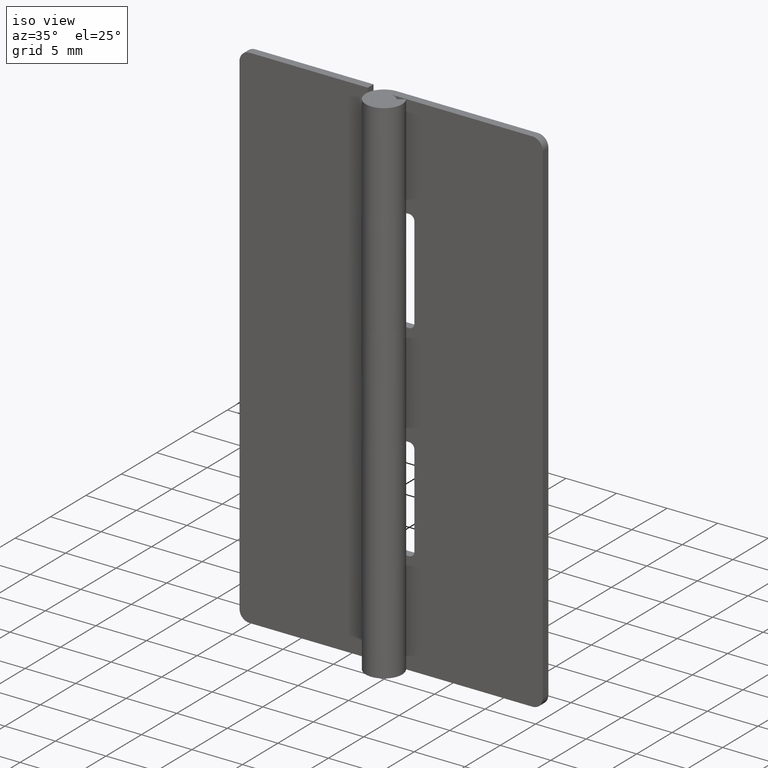
[diagram: clean part render]
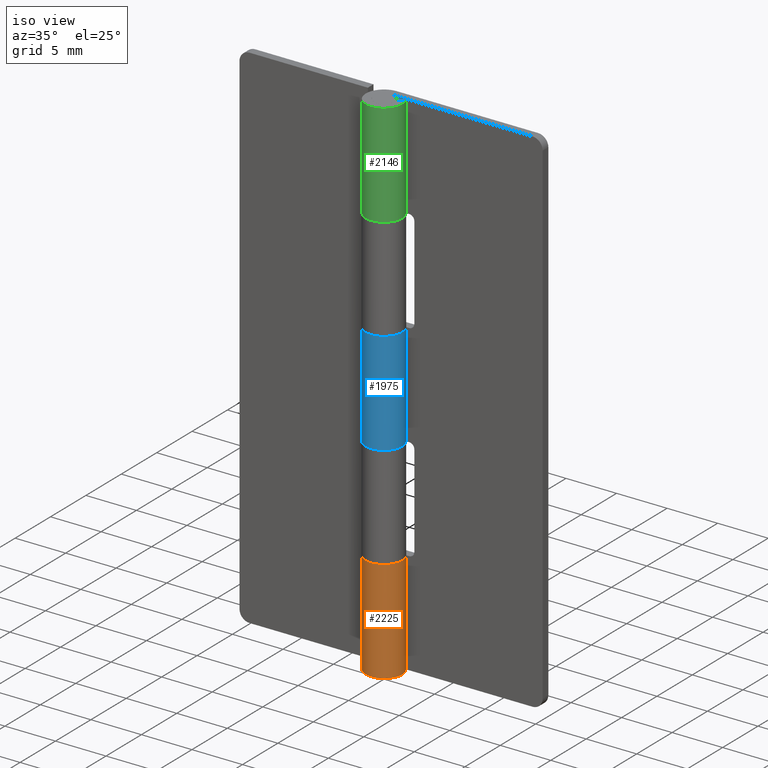
[diagram: same view with three faces highlighted in distinct colors, each labeled with its STEP entity id]
A machine part, iso view with three faces highlighted in distinct colors.
Their STEP definitions:

[orange] entity #2225 — the highlighted face is a freeform B-spline surface patch.
#1478=CARTESIAN_POINT('',(0.001897366339661,1.799999000000000,10.199997000000000));
#1479=VERTEX_POINT('',#1478);
#1485=CARTESIAN_POINT('',(0.0,1.799999499999995,10.199996999999961));
#1486=VERTEX_POINT('',#1485);
#1487=CARTESIAN_POINT('',(0.0,1.799999499999995,10.199996999999961));
#1488=CARTESIAN_POINT('',(0.001897366339661,1.799999000000000,10.199997000000000));
#1489=QUASI_UNIFORM_CURVE('',1,(#1487,#1488),.UNSPECIFIED.,.F.,.U.);
#1490=EDGE_CURVE('',#1486,#1479,#1489,.T.);
#1492=CARTESIAN_POINT('',(1.528888485142070,0.950000000000000,10.199996999999961));
#1493=VERTEX_POINT('',#1492);
#1494=CARTESIAN_POINT('',(0.0,1.799999499999995,10.199996999999961));
#1495=CARTESIAN_POINT('',(-1.392801052929097,1.800000000000001,10.199996999999961));
#1496=CARTESIAN_POINT('',(-1.742381113599922,0.451783194652365,10.199996999999961));
#1497=CARTESIAN_POINT('',(-2.091961174270747,-0.896433610695271,10.199996999999961));
#1498=CARTESIAN_POINT('',(-0.874642784226797,-1.573213272255226,10.199996999999961));
#1499=CARTESIAN_POINT('',(0.342675605817153,-2.249992933815181,10.199996999999961));
#1500=CARTESIAN_POINT('',(1.303326767780343,-1.241506881328994,10.199996999999961));
#1501=CARTESIAN_POINT('',(2.263977929743533,-0.233020828842806,10.199996999999961));
#1502=CARTESIAN_POINT('',(1.528888485142067,0.949999999999997,10.199996999999961));
#1510=(BOUNDED_CURVE()B_SPLINE_CURVE(2,(#1494,#1495,#1496,#1497,#1498,#1499,#1500,#1501,#1502),.UNSPECIFIED.,.F.,.U.)B_SPLINE_CURVE_WITH_KNOTS((3,2,2,2,3),(0.0,0.250000000000000,0.500000000000000,0.750000000000000,1.0),.UNSPECIFIED.)CURVE()GEOMETRIC_REPRESENTATION_ITEM()RATIONAL_B_SPLINE_CURVE((1.0,0.790882628363956,1.0,0.790882628363956,1.0,0.790882628363956,1.0,0.790882628363956,1.0))REPRESENTATION_ITEM(''));
#1511=EDGE_CURVE('',#1486,#1493,#1510,.T.);
#1804=CARTESIAN_POINT('',(0.001897366339661,1.799999000000000,0.0));
#1805=VERTEX_POINT('',#1804);
#1840=CARTESIAN_POINT('',(1.528888485142070,0.950000000000000,0.0));
#1841=VERTEX_POINT('',#1840);
#1847=CARTESIAN_POINT('',(1.528888485142070,0.950000000000000,0.0));
#1848=CARTESIAN_POINT('',(2.264178069144421,-0.233342924448529,0.0));
#1849=CARTESIAN_POINT('',(1.302999556723710,-1.241850294994455,0.0));
#1850=CARTESIAN_POINT('',(0.341821044302998,-2.250357665540383,0.0));
#1851=CARTESIAN_POINT('',(-0.875471818949307,-1.572752076528781,0.0));
#1852=CARTESIAN_POINT('',(-2.092764682201610,-0.895146487517180,0.0));
#1853=CARTESIAN_POINT('',(-1.742023403149212,0.453160526613295,0.0));
#1854=CARTESIAN_POINT('',(-1.391282124096815,1.801467540743771,0.0));
#1855=CARTESIAN_POINT('',(0.001897366339661,1.799999000000000,0.0));
#1863=(BOUNDED_CURVE()B_SPLINE_CURVE(2,(#1847,#1848,#1849,#1850,#1851,#1852,#1853,#1854,#1855),.UNSPECIFIED.,.F.,.U.)B_SPLINE_CURVE_WITH_KNOTS((3,2,2,2,3),(0.0,0.250000000000000,0.500000000000000,0.750000000000000,1.0),.UNSPECIFIED.)CURVE()GEOMETRIC_REPRESENTATION_ITEM()RATIONAL_B_SPLINE_CURVE((1.0,0.790801987648639,1.0,0.790801987648639,1.0,0.790801987648639,1.0,0.790801987648639,1.0))REPRESENTATION_ITEM(''));
#1864=EDGE_CURVE('',#1841,#1805,#1863,.T.);
#2091=CARTESIAN_POINT('',(0.001897366339661,1.799999000000000,10.199997000000000));
#2092=CARTESIAN_POINT('',(0.001897366339661,1.799999000000000,0.0));
#2093=QUASI_UNIFORM_CURVE('',1,(#2091,#2092),.UNSPECIFIED.,.F.,.U.);
#2094=EDGE_CURVE('',#1479,#1805,#2093,.T.);
#2153=CARTESIAN_POINT('',(1.528888485142070,0.950000000000000,10.199996999999961));
#2154=CARTESIAN_POINT('',(1.528888485142070,0.950000000000000,0.0));
#2155=QUASI_UNIFORM_CURVE('',1,(#2153,#2154),.UNSPECIFIED.,.F.,.U.);
#2156=EDGE_CURVE('',#1493,#1841,#2155,.T.);
#2196=CARTESIAN_POINT('',(0.078514897257602,1.798286798847343,10.454996925000000));
#2197=CARTESIAN_POINT('',(0.078514897257602,1.798286798847343,-0.261374923125000));
#2198=CARTESIAN_POINT('',(-2.155440145690264,1.895823382437670,10.454996925000000));
#2199=CARTESIAN_POINT('',(-2.155440145690264,1.895823382437670,-0.261374923125000));
#2200=CARTESIAN_POINT('',(-1.773555674137216,-0.307408963330094,10.454996925000000));
#2201=CARTESIAN_POINT('',(-1.773555674137216,-0.307408963330094,-0.261374923125000));
#2202=CARTESIAN_POINT('',(-1.391671202584169,-2.510641309097856,10.454996925000000));
#2203=CARTESIAN_POINT('',(-1.391671202584169,-2.510641309097856,-0.261374923125000));
#2204=CARTESIAN_POINT('',(0.679143731821915,-1.666962444546067,10.454996925000000));
#2205=CARTESIAN_POINT('',(0.679143731821915,-1.666962444546067,-0.261374923125000));
#2206=CARTESIAN_POINT('',(2.749958666227998,-0.823283579994278,10.454996925000000));
#2207=CARTESIAN_POINT('',(2.749958666227998,-0.823283579994278,-0.261374923125000));
#2208=CARTESIAN_POINT('',(1.483427139519628,1.019531226464698,10.454996925000000));
#2209=CARTESIAN_POINT('',(1.483427139519628,1.019531226464698,-0.261374923125000));
#2217=(BOUNDED_SURFACE()B_SPLINE_SURFACE(1,2,((#2196,#2198,#2200,#2202,#2204,#2206,#2208),(#2197,#2199,#2201,#2203,#2205,#2207,#2209)),.UNSPECIFIED.,.F.,.F.,.U.)B_SPLINE_SURFACE_WITH_KNOTS((2,2),(3,2,2,3),(0.0,10.716371848125000),(0.0,3.447087177418942,6.894174354837885,10.341261532256830),.UNSPECIFIED.)GEOMETRIC_REPRESENTATION_ITEM()RATIONAL_B_SPLINE_SURFACE(((1.0,0.627057105746662,1.0,0.627057105746662,1.0,0.627057105746662,1.0),(1.0,0.627057105746662,1.0,0.627057105746662,1.0,0.627057105746662,1.0)))REPRESENTATION_ITEM('')SURFACE());
#2218=ORIENTED_EDGE('',*,*,#1490,.T.);
#2219=ORIENTED_EDGE('',*,*,#2094,.T.);
#2220=ORIENTED_EDGE('',*,*,#1864,.F.);
#2221=ORIENTED_EDGE('',*,*,#2156,.F.);
#2222=ORIENTED_EDGE('',*,*,#1511,.F.);
#2223=EDGE_LOOP('',(#2218,#2219,#2220,#2221,#2222));
#2224=FACE_OUTER_BOUND('',#2223,.T.);
#2225=ADVANCED_FACE('',(#2224),#2217,.T.);

[blue] entity #1975 — the highlighted face is a freeform B-spline surface patch.
#1547=CARTESIAN_POINT('',(0.001897366339661,1.799999000000000,20.400001999999901));
#1548=VERTEX_POINT('',#1547);
#1583=CARTESIAN_POINT('',(1.528888485142070,0.950000000000000,20.400001999999901));
#1584=VERTEX_POINT('',#1583);
#1590=CARTESIAN_POINT('',(1.528888485142066,0.949999999999999,20.400001999999901));
#1591=CARTESIAN_POINT('',(2.264178069144421,-0.233342924448529,20.400001999999908));
#1592=CARTESIAN_POINT('',(1.302999556723710,-1.241850294994455,20.400001999999901));
#1593=CARTESIAN_POINT('',(0.341821044302998,-2.250357665540383,20.400001999999908));
#1594=CARTESIAN_POINT('',(-0.875471818949307,-1.572752076528781,20.400001999999901));
#1595=CARTESIAN_POINT('',(-2.092764682201610,-0.895146487517180,20.400001999999908));
#1596=CARTESIAN_POINT('',(-1.742023403149212,0.453160526613295,20.400001999999901));
#1597=CARTESIAN_POINT('',(-1.391282124096815,1.801467540743771,20.400001999999908));
#1598=CARTESIAN_POINT('',(0.001897366339661,1.799998999999992,20.400001999999901));
#1606=(BOUNDED_CURVE()B_SPLINE_CURVE(2,(#1590,#1591,#1592,#1593,#1594,#1595,#1596,#1597,#1598),.UNSPECIFIED.,.F.,.U.)B_SPLINE_CURVE_WITH_KNOTS((3,2,2,2,3),(0.0,0.250000000000000,0.500000000000000,0.750000000000000,1.0),.UNSPECIFIED.)CURVE()GEOMETRIC_REPRESENTATION_ITEM()RATIONAL_B_SPLINE_CURVE((1.0,0.790801987648639,1.0,0.790801987648639,1.0,0.790801987648639,1.0,0.790801987648639,1.0))REPRESENTATION_ITEM(''));
#1607=EDGE_CURVE('',#1584,#1548,#1606,.T.);
#1722=CARTESIAN_POINT('',(0.001897366339661,1.799999000000000,30.599990999999999));
#1723=VERTEX_POINT('',#1722);
#1729=CARTESIAN_POINT('',(1.528888485142070,0.950000000000000,30.599990999999999));
#1730=VERTEX_POINT('',#1729);
#1731=CARTESIAN_POINT('',(0.001897366339662,1.799998999999992,30.599990999999999));
#1732=CARTESIAN_POINT('',(-1.391282124096812,1.801467540743771,30.599991000000003));
#1733=CARTESIAN_POINT('',(-1.742023403149211,0.453160526613296,30.599990999999999));
#1734=CARTESIAN_POINT('',(-2.092764682201610,-0.895146487517178,30.599991000000003));
#1735=CARTESIAN_POINT('',(-0.875471818949307,-1.572752076528780,30.599990999999999));
#1736=CARTESIAN_POINT('',(0.341821044302995,-2.250357665540383,30.599991000000003));
#1737=CARTESIAN_POINT('',(1.302999556723708,-1.241850294994457,30.599990999999999));
#1738=CARTESIAN_POINT('',(2.264178069144421,-0.233342924448532,30.599991000000003));
#1739=CARTESIAN_POINT('',(1.528888485142067,0.949999999999997,30.599990999999999));
#1747=(BOUNDED_CURVE()B_SPLINE_CURVE(2,(#1731,#1732,#1733,#1734,#1735,#1736,#1737,#1738,#1739),.UNSPECIFIED.,.F.,.U.)B_SPLINE_CURVE_WITH_KNOTS((3,2,2,2,3),(0.0,0.250000000000000,0.500000000000000,0.750000000000000,1.0),.UNSPECIFIED.)CURVE()GEOMETRIC_REPRESENTATION_ITEM()RATIONAL_B_SPLINE_CURVE((1.0,0.790801987648639,1.0,0.790801987648639,1.0,0.790801987648639,1.0,0.790801987648639,1.0))REPRESENTATION_ITEM(''));
#1748=EDGE_CURVE('',#1723,#1730,#1747,.T.);
#1939=CARTESIAN_POINT('',(0.051658570403824,1.799258567328173,30.854990725000011));
#1940=CARTESIAN_POINT('',(0.051658570403824,1.799258567328173,20.138627281874900));
#1941=CARTESIAN_POINT('',(-2.196862823818758,1.863815937156590,30.854990725000015));
#1942=CARTESIAN_POINT('',(-2.196862823818758,1.863815937156590,20.138627281874900));
#1943=CARTESIAN_POINT('',(-1.766796336686053,-0.344137624610768,30.854990725000011));
#1944=CARTESIAN_POINT('',(-1.766796336686053,-0.344137624610768,20.138627281874900));
#1945=CARTESIAN_POINT('',(-1.336729849553347,-2.552091186378127,30.854990725000015));
#1946=CARTESIAN_POINT('',(-1.336729849553347,-2.552091186378127,20.138627281874900));
#1947=CARTESIAN_POINT('',(0.723182769453666,-1.648334517616289,30.854990725000011));
#1948=CARTESIAN_POINT('',(0.723182769453666,-1.648334517616289,20.138627281874900));
#1949=CARTESIAN_POINT('',(2.783095388460680,-0.744577848854451,30.854990725000015));
#1950=CARTESIAN_POINT('',(2.783095388460680,-0.744577848854451,20.138627281874900));
#1951=CARTESIAN_POINT('',(1.449639291241658,1.067026675059430,30.854990725000011));
#1952=CARTESIAN_POINT('',(1.449639291241658,1.067026675059430,20.138627281874900));
#1960=(BOUNDED_SURFACE()B_SPLINE_SURFACE(1,2,((#1939,#1941,#1943,#1945,#1947,#1949,#1951),(#1940,#1942,#1944,#1946,#1948,#1950,#1952)),.UNSPECIFIED.,.F.,.F.,.U.)B_SPLINE_SURFACE_WITH_KNOTS((2,2),(3,2,2,3),(0.0,10.716363443125109),(0.0,3.459968446201030,6.919936892402060,10.379905338603090),.UNSPECIFIED.)GEOMETRIC_REPRESENTATION_ITEM()RATIONAL_B_SPLINE_SURFACE(((1.0,0.624788514543960,1.0,0.624788514543960,1.0,0.624788514543960,1.0),(1.0,0.624788514543960,1.0,0.624788514543960,1.0,0.624788514543960,1.0)))REPRESENTATION_ITEM('')SURFACE());
#1961=ORIENTED_EDGE('',*,*,#1607,.F.);
#1962=CARTESIAN_POINT('',(1.528888485142070,0.950000000000000,30.599990999999999));
#1963=CARTESIAN_POINT('',(1.528888485142070,0.950000000000000,20.400001999999901));
#1964=QUASI_UNIFORM_CURVE('',1,(#1962,#1963),.UNSPECIFIED.,.F.,.U.);
#1965=EDGE_CURVE('',#1730,#1584,#1964,.T.);
#1966=ORIENTED_EDGE('',*,*,#1965,.F.);
#1967=ORIENTED_EDGE('',*,*,#1748,.F.);
#1968=CARTESIAN_POINT('',(0.001897366339661,1.799999000000000,30.599990999999999));
#1969=CARTESIAN_POINT('',(0.001897366339661,1.799999000000000,20.400001999999901));
#1970=QUASI_UNIFORM_CURVE('',1,(#1968,#1969),.UNSPECIFIED.,.F.,.U.);
#1971=EDGE_CURVE('',#1723,#1548,#1970,.T.);
#1972=ORIENTED_EDGE('',*,*,#1971,.T.);
#1973=EDGE_LOOP('',(#1961,#1966,#1967,#1972));
#1974=FACE_OUTER_BOUND('',#1973,.T.);
#1975=ADVANCED_FACE('',(#1974),#1960,.T.);

[green] entity #2146 — the highlighted face is a freeform B-spline surface patch.
#1637=CARTESIAN_POINT('',(0.001897366339661,1.799999000000000,40.799995999999886));
#1638=VERTEX_POINT('',#1637);
#1673=CARTESIAN_POINT('',(1.528888485142070,0.950000000000000,40.799995999999950));
#1674=VERTEX_POINT('',#1673);
#1680=CARTESIAN_POINT('',(0.0,1.799999000000000,40.799995999999886));
#1681=VERTEX_POINT('',#1680);
#1682=CARTESIAN_POINT('',(1.528888485142070,0.950000000000000,40.799995999999950));
#1683=CARTESIAN_POINT('',(2.263977929743539,-0.233020132948195,40.799995999999993));
#1684=CARTESIAN_POINT('',(1.303326767780350,-1.241506385276004,40.799995999999979));
#1685=CARTESIAN_POINT('',(0.342675605817160,-2.249992637603814,40.799995999999972));
#1686=CARTESIAN_POINT('',(-0.874642784226794,-1.573213772255226,40.799995999999922));
#1687=CARTESIAN_POINT('',(-2.091961174270748,-0.896434906906639,40.799995999999894));
#1688=CARTESIAN_POINT('',(-1.742381113599924,0.451781698599378,40.799995999999872));
#1689=CARTESIAN_POINT('',(-1.392801052929100,1.799998304105394,40.799995999999865));
#1690=CARTESIAN_POINT('',(0.0,1.799999000000000,40.799995999999886));
#1698=(BOUNDED_CURVE()B_SPLINE_CURVE(2,(#1682,#1683,#1684,#1685,#1686,#1687,#1688,#1689,#1690),.UNSPECIFIED.,.F.,.U.)B_SPLINE_CURVE_WITH_KNOTS((3,2,2,2,3),(0.0,0.250000000000000,0.500000000000000,0.750000000000000,1.0),.UNSPECIFIED.)CURVE()GEOMETRIC_REPRESENTATION_ITEM()RATIONAL_B_SPLINE_CURVE((1.0,0.790882628363956,1.0,0.790882628363956,1.0,0.790882628363956,1.0,0.790882628363956,1.0))REPRESENTATION_ITEM(''));
#1699=EDGE_CURVE('',#1674,#1681,#1698,.T.);
#1701=CARTESIAN_POINT('',(0.0,1.799999000000000,40.799995999999886));
#1702=CARTESIAN_POINT('',(0.001897366339661,1.799999000000000,40.799995999999886));
#1703=QUASI_UNIFORM_CURVE('',1,(#1701,#1702),.UNSPECIFIED.,.F.,.U.);
#1704=EDGE_CURVE('',#1681,#1638,#1703,.T.);
#1882=CARTESIAN_POINT('',(0.001897366339661,1.799999000000000,50.999992999999897));
#1883=VERTEX_POINT('',#1882);
#1889=CARTESIAN_POINT('',(1.528888485142070,0.950000000000000,50.999992999999897));
#1890=VERTEX_POINT('',#1889);
#1891=CARTESIAN_POINT('',(1.528888485142066,0.949999999999999,50.999992999999897));
#1892=CARTESIAN_POINT('',(2.264178069144421,-0.233342924448529,50.999992999999897));
#1893=CARTESIAN_POINT('',(1.302999556723710,-1.241850294994455,50.999992999999897));
#1894=CARTESIAN_POINT('',(0.341821044302998,-2.250357665540383,50.999992999999897));
#1895=CARTESIAN_POINT('',(-0.875471818949307,-1.572752076528781,50.999992999999897));
#1896=CARTESIAN_POINT('',(-2.092764682201610,-0.895146487517180,50.999992999999897));
#1897=CARTESIAN_POINT('',(-1.742023403149212,0.453160526613295,50.999992999999897));
#1898=CARTESIAN_POINT('',(-1.391282124096815,1.801467540743771,50.999992999999897));
#1899=CARTESIAN_POINT('',(0.001897366339661,1.799998999999992,50.999992999999897));
#1907=(BOUNDED_CURVE()B_SPLINE_CURVE(2,(#1891,#1892,#1893,#1894,#1895,#1896,#1897,#1898,#1899),.UNSPECIFIED.,.F.,.U.)B_SPLINE_CURVE_WITH_KNOTS((3,2,2,2,3),(0.0,0.250000000000000,0.500000000000000,0.750000000000000,1.0),.UNSPECIFIED.)CURVE()GEOMETRIC_REPRESENTATION_ITEM()RATIONAL_B_SPLINE_CURVE((1.0,0.790801987648639,1.0,0.790801987648639,1.0,0.790801987648639,1.0,0.790801987648639,1.0))REPRESENTATION_ITEM(''));
#1908=EDGE_CURVE('',#1890,#1883,#1907,.T.);
#1988=CARTESIAN_POINT('',(1.528888485142070,0.950000000000000,50.999992999999897));
#1989=CARTESIAN_POINT('',(1.528888485142070,0.950000000000000,40.799995999999950));
#1990=QUASI_UNIFORM_CURVE('',1,(#1988,#1989),.UNSPECIFIED.,.F.,.U.);
#1991=EDGE_CURVE('',#1890,#1674,#1990,.T.);
#2107=CARTESIAN_POINT('',(0.001897366339661,1.799999000000000,50.999992999999897));
#2108=CARTESIAN_POINT('',(0.001897366339661,1.799999000000000,40.799995999999886));
#2109=QUASI_UNIFORM_CURVE('',1,(#2107,#2108),.UNSPECIFIED.,.F.,.U.);
#2110=EDGE_CURVE('',#1883,#1638,#2109,.T.);
#2117=CARTESIAN_POINT('',(0.078514897257602,1.798286798847343,51.254992924999897));
#2118=CARTESIAN_POINT('',(0.078514897257602,1.798286798847343,40.538621076874861));
#2119=CARTESIAN_POINT('',(-2.155440145690264,1.895823382437670,51.254992924999897));
#2120=CARTESIAN_POINT('',(-2.155440145690264,1.895823382437670,40.538621076874854));
#2121=CARTESIAN_POINT('',(-1.773555674137216,-0.307408963330094,51.254992924999897));
#2122=CARTESIAN_POINT('',(-1.773555674137216,-0.307408963330094,40.538621076874861));
#2123=CARTESIAN_POINT('',(-1.391671202584169,-2.510641309097856,51.254992924999897));
#2124=CARTESIAN_POINT('',(-1.391671202584169,-2.510641309097856,40.538621076874854));
#2125=CARTESIAN_POINT('',(0.679143731821915,-1.666962444546067,51.254992924999897));
#2126=CARTESIAN_POINT('',(0.679143731821915,-1.666962444546067,40.538621076874861));
#2127=CARTESIAN_POINT('',(2.749958666227998,-0.823283579994278,51.254992924999897));
#2128=CARTESIAN_POINT('',(2.749958666227998,-0.823283579994278,40.538621076874854));
#2129=CARTESIAN_POINT('',(1.483427139519628,1.019531226464698,51.254992924999897));
#2130=CARTESIAN_POINT('',(1.483427139519628,1.019531226464698,40.538621076874861));
#2138=(BOUNDED_SURFACE()B_SPLINE_SURFACE(1,2,((#2117,#2119,#2121,#2123,#2125,#2127,#2129),(#2118,#2120,#2122,#2124,#2126,#2128,#2130)),.UNSPECIFIED.,.F.,.F.,.U.)B_SPLINE_SURFACE_WITH_KNOTS((2,2),(3,2,2,3),(0.0,10.716371848125039),(0.0,3.447087177418942,6.894174354837885,10.341261532256830),.UNSPECIFIED.)GEOMETRIC_REPRESENTATION_ITEM()RATIONAL_B_SPLINE_SURFACE(((1.0,0.627057105746662,1.0,0.627057105746662,1.0,0.627057105746662,1.0),(1.0,0.627057105746662,1.0,0.627057105746662,1.0,0.627057105746662,1.0)))REPRESENTATION_ITEM('')SURFACE());
#2139=ORIENTED_EDGE('',*,*,#1704,.F.);
#2140=ORIENTED_EDGE('',*,*,#1699,.F.);
#2141=ORIENTED_EDGE('',*,*,#1991,.F.);
#2142=ORIENTED_EDGE('',*,*,#1908,.T.);
#2143=ORIENTED_EDGE('',*,*,#2110,.T.);
#2144=EDGE_LOOP('',(#2139,#2140,#2141,#2142,#2143));
#2145=FACE_OUTER_BOUND('',#2144,.T.);
#2146=ADVANCED_FACE('',(#2145),#2138,.T.);